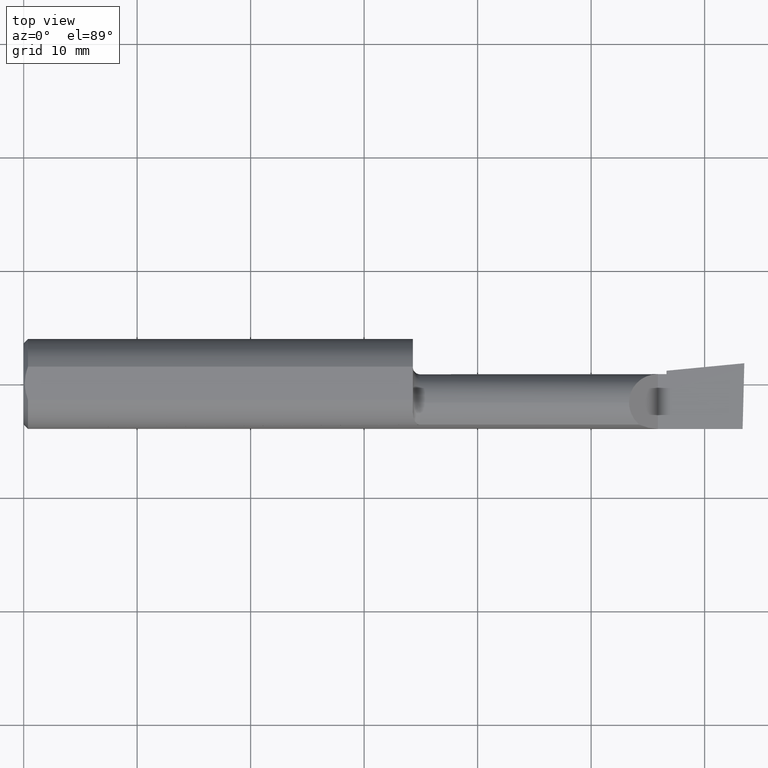
[diagram: clean part render]
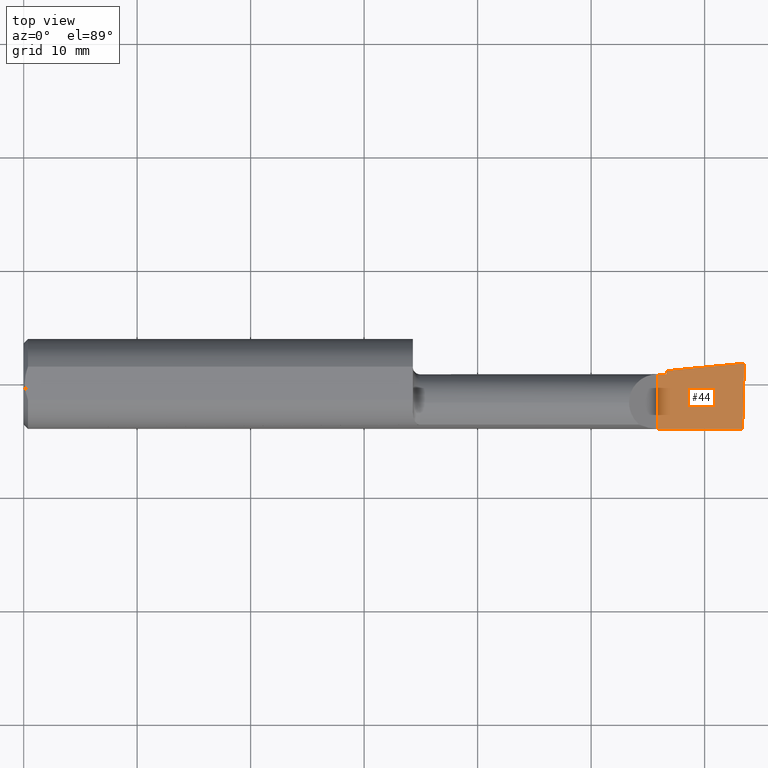
[diagram: same view with one face highlighted and labeled with its STEP entity id]
A machine part, top view. The second image highlights one B-rep face of the part: STEP entity #44.
In plain terms, the highlighted planar face has unit normal (-0, 0, -1).
Its self-contained STEP definition (entity closure, byte-faithful):
#3 = CARTESIAN_POINT ( 'NONE',  ( 1.067853742648958049, -0.06599999999999998923, 2.099619311869716025E-16 ) ) ;
#25 = LINE ( 'NONE', #301, #458 ) ;
#32 = CARTESIAN_POINT ( 'NONE',  ( 2.500000000000015543, 0.07190000000002047531, 6.193638301338760095E-14 ) ) ;
#34 = DIRECTION ( 'NONE',  ( -1.000000000000000000, -0.0000000000000000000, -0.0000000000000000000 ) ) ;
#39 = EDGE_CURVE ( 'NONE', #432, #308, #25, .T. ) ;
#44 = ADVANCED_FACE ( 'NONE', ( #431 ), #125, .F. ) ;
#59 = EDGE_CURVE ( 'NONE', #308, #392, #223, .T. ) ;
#63 = CARTESIAN_POINT ( 'NONE',  ( 2.200000000000000178, -0.1560999999999999888, 9.797174393178826150E-17 ) ) ;
#102 = LINE ( 'NONE', #3, #416 ) ;
#124 = CARTESIAN_POINT ( 'NONE',  ( 2.494029609882228549, -0.1561000000000000165, 6.889038570631779204E-17 ) ) ;
#125 = PLANE ( 'NONE',  #500 ) ;
#142 = CARTESIAN_POINT ( 'NONE',  ( 2.491576527842699562, -0.2497794236187485528, 6.912943690626120576E-17 ) ) ;
#145 = DIRECTION ( 'NONE',  ( -9.891848030060559526E-17, 0.0000000000000000000, -1.000000000000000000 ) ) ;
#156 = VERTEX_POINT ( 'NONE', #63 ) ;
#160 = LINE ( 'NONE', #692, #452 ) ;
#168 = DIRECTION ( 'NONE',  ( -1.000000000000000000, 0.0000000000000000000, 9.891848030060559526E-17 ) ) ;
#170 = VERTEX_POINT ( 'NONE', #32 ) ;
#179 = CARTESIAN_POINT ( 'NONE',  ( 2.200000000000000178, 0.03389999999999987468, 9.797174393178826150E-17 ) ) ;
#210 = VERTEX_POINT ( 'NONE', #124 ) ;
#221 = DIRECTION ( 'NONE',  ( -0.0000000000000000000, 1.000000000000000000, -0.0000000000000000000 ) ) ;
#223 = LINE ( 'NONE', #275, #445 ) ;
#275 = CARTESIAN_POINT ( 'NONE',  ( 2.229999999999999982, -0.2500000000000000555, 9.500418952277011559E-17 ) ) ;
#277 = DIRECTION ( 'NONE',  ( 0.0000000000000000000, 1.000000000000000000, 0.0000000000000000000 ) ) ;
#290 = DIRECTION ( 'NONE',  ( 1.000000000000000000, 0.0000000000000000000, 0.0000000000000000000 ) ) ;
#292 = CARTESIAN_POINT ( 'NONE',  ( 2.500000000000000000, -0.2500000000000000555, 6.829619984160658046E-17 ) ) ;
#295 = EDGE_CURVE ( 'NONE', #210, #156, #160, .T. ) ;
#301 = CARTESIAN_POINT ( 'NONE',  ( 3.121792066109142165E-32, 0.03389999999999990937, 3.155924005931204823E-16 ) ) ;
#307 = DIRECTION ( 'NONE',  ( 0.9953961983671787417, 0.09584575252022466130, -9.846307923948147589E-17 ) ) ;
#308 = VERTEX_POINT ( 'NONE', #406 ) ;
#319 = ORIENTED_EDGE ( 'NONE', *, *, #295, .F. ) ;
#355 = CARTESIAN_POINT ( 'NONE',  ( 2.200000000000000178, -0.2500000000000000555, 9.797174393178826150E-17 ) ) ;
#366 = EDGE_LOOP ( 'NONE', ( #319, #469, #659, #487, #514, #621 ) ) ;
#370 = VECTOR ( 'NONE', #221, 39.37007874015748143 ) ;
#392 = VERTEX_POINT ( 'NONE', #593 ) ;
#406 = CARTESIAN_POINT ( 'NONE',  ( 2.229999999999999982, 0.03389999999999996488, 3.155924005931206302E-16 ) ) ;
#416 = VECTOR ( 'NONE', #307, 39.37007874015748143 ) ;
#431 = FACE_OUTER_BOUND ( 'NONE', #366, .T. ) ;
#432 = VERTEX_POINT ( 'NONE', #179 ) ;
#445 = VECTOR ( 'NONE', #277, 39.37007874015748143 ) ;
#452 = VECTOR ( 'NONE', #34, 39.37007874015748143 ) ;
#458 = VECTOR ( 'NONE', #290, 39.37007874015748143 ) ;
#459 = EDGE_CURVE ( 'NONE', #210, #170, #472, .T. ) ;
#469 = ORIENTED_EDGE ( 'NONE', *, *, #459, .T. ) ;
#472 = LINE ( 'NONE', #142, #588 ) ;
#480 = DIRECTION ( 'NONE',  ( 0.02617694830789217553, 0.9996573249755568158, -2.550926060776988469E-18 ) ) ;
#487 = ORIENTED_EDGE ( 'NONE', *, *, #59, .F. ) ;
#493 = LINE ( 'NONE', #355, #370 ) ;
#500 = AXIS2_PLACEMENT_3D ( 'NONE', #292, #145, #168 ) ;
#514 = ORIENTED_EDGE ( 'NONE', *, *, #39, .F. ) ;
#528 = EDGE_CURVE ( 'NONE', #392, #170, #102, .T. ) ;
#588 = VECTOR ( 'NONE', #480, 39.37007874015748143 ) ;
#593 = CARTESIAN_POINT ( 'NONE',  ( 2.229999999999999982, 0.04590195698666835883, 3.180041805124806541E-16 ) ) ;
#616 = EDGE_CURVE ( 'NONE', #156, #432, #493, .T. ) ;
#621 = ORIENTED_EDGE ( 'NONE', *, *, #616, .F. ) ;
#659 = ORIENTED_EDGE ( 'NONE', *, *, #528, .F. ) ;
#692 = CARTESIAN_POINT ( 'NONE',  ( 3.121792066109142165E-32, -0.1560999999999999333, 3.155924005931204823E-16 ) ) ;